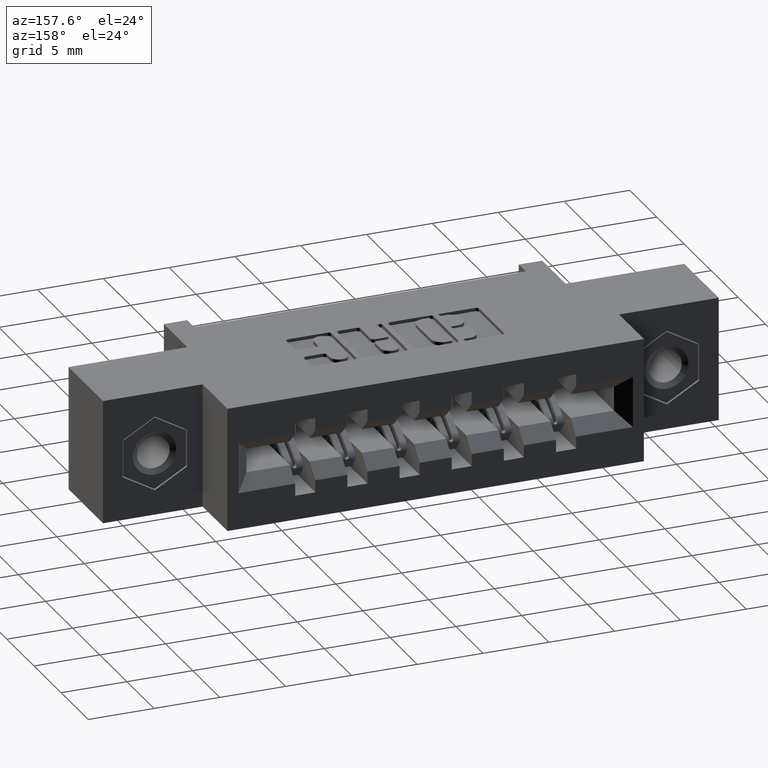
[diagram: clean part render]
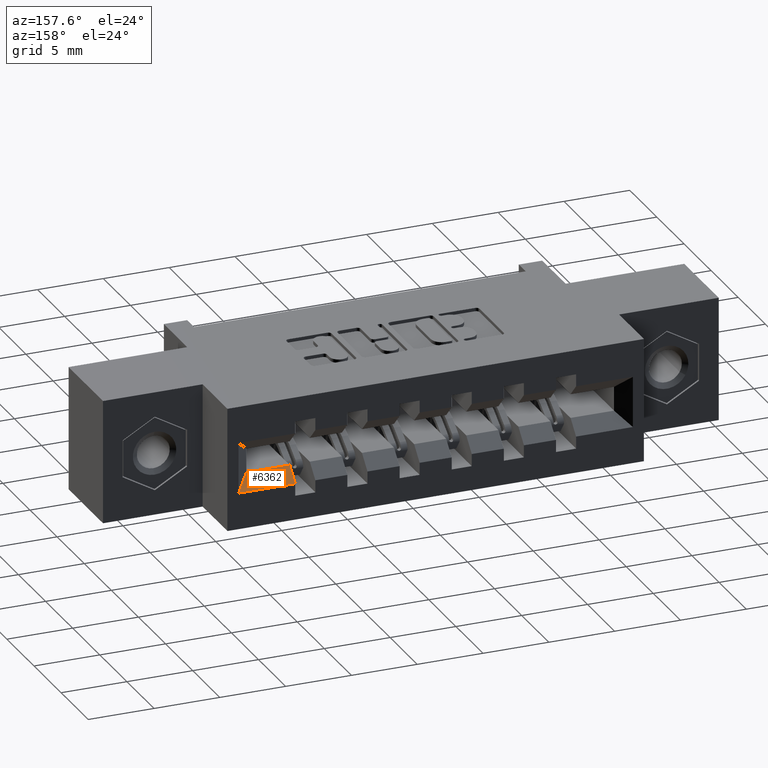
[diagram: same view with one face highlighted and labeled with its STEP entity id]
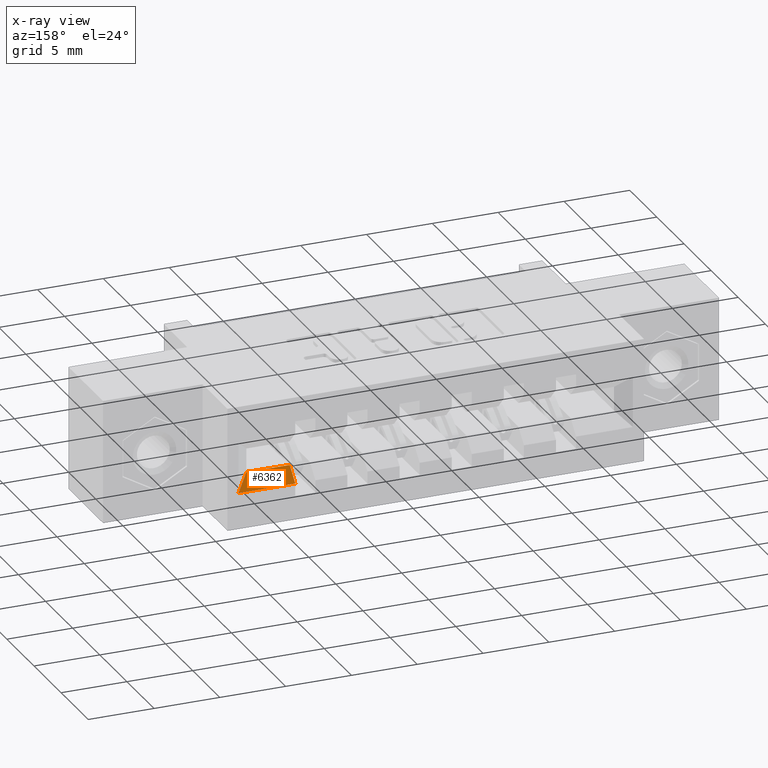
[diagram: x-ray of the same camera — body ghosted, the highlighted face saturated]
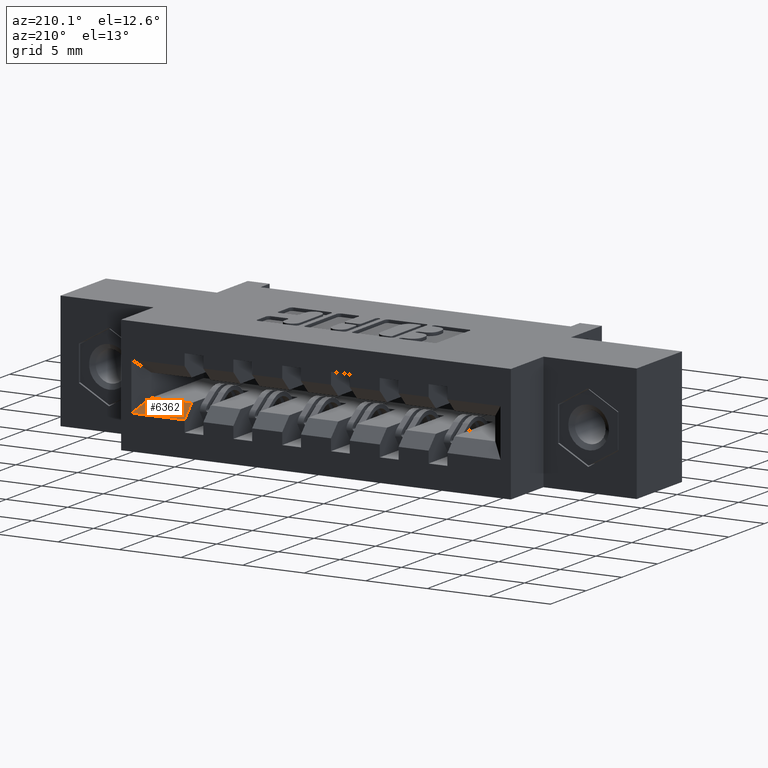
[diagram: same view with one face highlighted and labeled with its STEP entity id]
A machine part, auxiliary view. The second image highlights one B-rep face of the part: STEP entity #6362.
The next image is the same camera in x-ray: the body ghosted, the highlighted face saturated — about 0% of this face is hidden behind the body in this view.
A second angle (auxiliary view) of the same face is appended — the face is thin or edge-on in the first view.
In plain terms, the highlighted planar face has unit normal (0, -0.7071, -0.7071).
Its self-contained STEP definition (entity closure, byte-faithful):
#211 = CARTESIAN_POINT ( 'NONE',  ( 1.511000000000000600, 0.5999999999999999800, -0.2609999999999999500 ) ) ;
#926 = DIRECTION ( 'NONE',  ( 0.0000000000000000000, 0.7071067811865451300, -0.7071067811865499000 ) ) ;
#1291 = EDGE_CURVE ( 'NONE', #8886, #3757, #2807, .T. ) ;
#1976 = AXIS2_PLACEMENT_3D ( 'NONE', #10472, #6476, #926 ) ;
#2108 = CARTESIAN_POINT ( 'NONE',  ( 1.471000000000000800, 0.5600000000000003900, -0.2210000000000000900 ) ) ;
#2428 = EDGE_CURVE ( 'NONE', #8886, #5365, #10169, .T. ) ;
#2439 = EDGE_CURVE ( 'NONE', #3757, #2575, #5045, .T. ) ;
#2511 = EDGE_CURVE ( 'NONE', #2575, #5365, #9134, .T. ) ;
#2575 = VERTEX_POINT ( 'NONE', #7155 ) ;
#2713 = VECTOR ( 'NONE', #7090, 39.37007874015748100 ) ;
#2807 = LINE ( 'NONE', #8073, #2713 ) ;
#3503 = EDGE_LOOP ( 'NONE', ( #8837, #8868, #8958, #9307 ) ) ;
#3757 = VERTEX_POINT ( 'NONE', #8661 ) ;
#4341 = CARTESIAN_POINT ( 'NONE',  ( 1.340999999999999700, 0.5600000000000003900, -0.2210000000000000900 ) ) ;
#5039 = VECTOR ( 'NONE', #5615, 39.37007874015748900 ) ;
#5045 = LINE ( 'NONE', #4341, #10384 ) ;
#5229 = DIRECTION ( 'NONE',  ( -0.0000000000000000000, 0.7071067811865451300, -0.7071067811865499000 ) ) ;
#5365 = VERTEX_POINT ( 'NONE', #211 ) ;
#5569 = PLANE ( 'NONE',  #1976 ) ;
#5615 = DIRECTION ( 'NONE',  ( 0.5773502691896269500, 0.5773502691896230700, -0.5773502691896269500 ) ) ;
#5640 = VECTOR ( 'NONE', #5889, 39.37007874015748100 ) ;
#5889 = DIRECTION ( 'NONE',  ( 1.000000000000000000, 0.0000000000000000000, 0.0000000000000000000 ) ) ;
#6362 = ADVANCED_FACE ( 'NONE', ( #9812 ), #5569, .F. ) ;
#6476 = DIRECTION ( 'NONE',  ( 0.0000000000000000000, -0.7071067811865499000, -0.7071067811865451300 ) ) ;
#7090 = DIRECTION ( 'NONE',  ( -1.000000000000000000, 0.0000000000000000000, 0.0000000000000000000 ) ) ;
#7155 = CARTESIAN_POINT ( 'NONE',  ( 1.340999999999999700, 0.5999999999999999800, -0.2609999999999999500 ) ) ;
#7379 = CARTESIAN_POINT ( 'NONE',  ( 1.471000000000000800, 0.5600000000000003900, -0.2210000000000000900 ) ) ;
#8073 = CARTESIAN_POINT ( 'NONE',  ( 0.3710000000000000000, 0.5600000000000003900, -0.2210000000000000900 ) ) ;
#8389 = CARTESIAN_POINT ( 'NONE',  ( 0.0000000000000000000, 0.5999999999999999800, -0.2609999999999999500 ) ) ;
#8661 = CARTESIAN_POINT ( 'NONE',  ( 1.340999999999999700, 0.5600000000000003900, -0.2210000000000000900 ) ) ;
#8837 = ORIENTED_EDGE ( 'NONE', *, *, #2439, .F. ) ;
#8868 = ORIENTED_EDGE ( 'NONE', *, *, #1291, .F. ) ;
#8886 = VERTEX_POINT ( 'NONE', #2108 ) ;
#8958 = ORIENTED_EDGE ( 'NONE', *, *, #2428, .T. ) ;
#9134 = LINE ( 'NONE', #8389, #5640 ) ;
#9307 = ORIENTED_EDGE ( 'NONE', *, *, #2511, .F. ) ;
#9812 = FACE_OUTER_BOUND ( 'NONE', #3503, .T. ) ;
#10169 = LINE ( 'NONE', #7379, #5039 ) ;
#10384 = VECTOR ( 'NONE', #5229, 39.37007874015748100 ) ;
#10472 = CARTESIAN_POINT ( 'NONE',  ( 0.3710000000000000000, 0.5600000000000003900, -0.2210000000000000900 ) ) ;